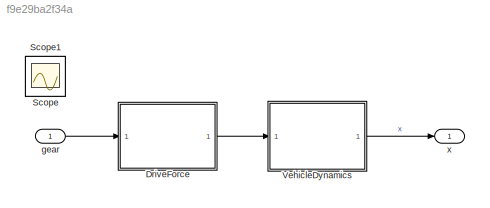
MODEL slx_f9e29ba2f34a
KIND model
CONFIG AbsTol = auto
CONFIG EnableMultiTasking = on
CONFIG FixedStep = auto
CONFIG MaxStep = auto
CONFIG MinStep = auto
CONFIG PreLoadFcn = load gear_data;\nFDR = 3.23;\nAvgEngTorque = 222;\nLoss = 0.8;\nr_tire = 1.030;\nm = 104.2;\nCd = 0.4;\nrho = 2.377e-3;\nh = 4.15;\nw = 5.71;
CONFIG RelTol = 1e-3
CONFIG SampleTimeConstraint = Unconstrained
CONFIG Solver = ode45
CONFIG SolverName = ode45
CONFIG StartTime = 0.0
CONFIG StopTime = 15
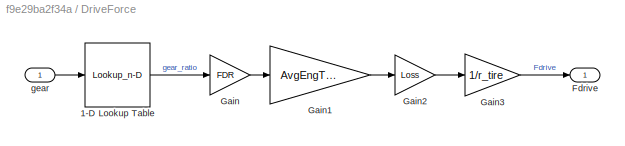
BLOCK [SubSystem] DriveForce
  Ports = [1, 1]
  RequestExecContextInheritance = off
BLOCK [Lookup_n-D] DriveForce/1-D Lookup Table
  BreakpointsForDimension1 = [1:5]
  ExtrapMethod = Clip
  InterpMethod = Flat
  NumberOfTableDimensions = 1
  Ports = [1, 1]
  RndMeth = Simplest
  Table = [4.21 2.49 1.66 1.24 1.00]
BLOCK [Outport] DriveForce/Fdrive
  IconDisplay = Port number
BLOCK [Gain] DriveForce/Gain
  Gain = FDR
  OutDataTypeStr = Inherit: Inherit via internal rule
  ParamDataTypeStr = Inherit: Inherit via internal rule
  SaturateOnIntegerOverflow = off
BLOCK [Gain] DriveForce/Gain1
  Gain = AvgEngTorque
  OutDataTypeStr = Inherit: Inherit via internal rule
  ParamDataTypeStr = Inherit: Inherit via internal rule
  SaturateOnIntegerOverflow = off
BLOCK [Gain] DriveForce/Gain2
  Gain = Loss
  OutDataTypeStr = Inherit: Inherit via internal rule
  ParamDataTypeStr = Inherit: Inherit via internal rule
  SaturateOnIntegerOverflow = off
BLOCK [Gain] DriveForce/Gain3
  Gain = 1/r_tire
  OutDataTypeStr = Inherit: Inherit via internal rule
  ParamDataTypeStr = Inherit: Inherit via internal rule
  SaturateOnIntegerOverflow = off
BLOCK [Inport] DriveForce/gear
  IconDisplay = Port number
BLOCK [Scope] Scope
  Floating = off
  IOType = viewer
  NumInputPorts = 1
  Ports = []
  ScopeSpecificationString = Simulink.scopes.TimeScopeBlockCfg('CurrentConfiguration', extmgr.ConfigurationSet(extmgr.Configuration('Core','General UI',true),extmgr.Configuration('Core','Source UI',true),extmgr.Configuration('Sources','WiredSimulink',true,'DataLoggingMaxPoints','7500','DataLoggingLimitDataPoints',true,'DataLoggingSaveFormat','Array','DataLoggingDecimation','1','DataLoggingDecimateData',true),extmgr.Configurat...<+1882ch>
BLOCK [Scope] Scope1
  Floating = off
  IOType = viewer
  NumInputPorts = 1
  Ports = []
  ScopeSpecificationString = Simulink.scopes.TimeScopeBlockCfg('CurrentConfiguration', extmgr.ConfigurationSet(extmgr.Configuration('Core','General UI',true),extmgr.Configuration('Core','Source UI',true),extmgr.Configuration('Sources','WiredSimulink',true,'DataLoggingVariableName','ScopeData1','DataLoggingMaxPoints','7500','DataLoggingLimitDataPoints',true,'DataLoggingSaveFormat','Array','DataLoggingDecimation','1','DataLoggi...<+2794ch>
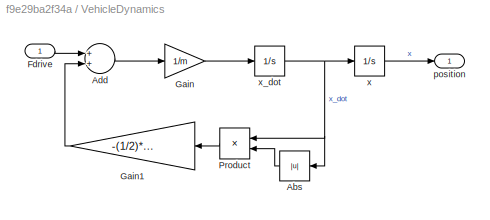
BLOCK [SubSystem] VehicleDynamics
  Ports = [1, 1]
  RequestExecContextInheritance = off
BLOCK [Abs] VehicleDynamics/Abs
  SaturateOnIntegerOverflow = off
BLOCK [Sum] VehicleDynamics/Add
  InputSameDT = off
  OutDataTypeStr = Inherit: Inherit via internal rule
  Ports = [2, 1]
  SaturateOnIntegerOverflow = off
BLOCK [Inport] VehicleDynamics/Fdrive
  IconDisplay = Port number
BLOCK [Gain] VehicleDynamics/Gain
  Gain = 1/m
  OutDataTypeStr = Inherit: Inherit via internal rule
  ParamDataTypeStr = Inherit: Inherit via internal rule
  SaturateOnIntegerOverflow = off
BLOCK [Gain] VehicleDynamics/Gain1
  Gain = -(1/2)*Cd*rho*h*w
  OutDataTypeStr = Inherit: Inherit via internal rule
  ParamDataTypeStr = Inherit: Inherit via internal rule
  SaturateOnIntegerOverflow = off
BLOCK [Product] VehicleDynamics/Product
  InputSameDT = off
  OutDataTypeStr = Inherit: Inherit via internal rule
  Ports = [2, 1]
  SaturateOnIntegerOverflow = off
BLOCK [Outport] VehicleDynamics/position
  IconDisplay = Port number
BLOCK [Integrator] VehicleDynamics/x
  Ports = [1, 1]
BLOCK [Integrator] VehicleDynamics/x_dot
  Ports = [1, 1]
BLOCK [Inport] gear
  IconDisplay = Port number
BLOCK [Outport] x
  IconDisplay = Port number
LINE DriveForce/1-D Lookup Table:1 -> DriveForce/Gain:1
LINE DriveForce/Gain1:1 -> DriveForce/Gain2:1
LINE DriveForce/Gain2:1 -> DriveForce/Gain3:1
LINE DriveForce/Gain3:1 -> DriveForce/Fdrive:1
LINE DriveForce/Gain:1 -> DriveForce/Gain1:1
LINE DriveForce/gear:1 -> DriveForce/1-D Lookup Table:1
LINE DriveForce:1 -> VehicleDynamics:1
LINE VehicleDynamics/Abs:1 -> VehicleDynamics/Product:2
LINE VehicleDynamics/Add:1 -> VehicleDynamics/Gain:1
LINE VehicleDynamics/Fdrive:1 -> VehicleDynamics/Add:1
LINE VehicleDynamics/Gain1:1 -> VehicleDynamics/Add:2
LINE VehicleDynamics/Gain:1 -> VehicleDynamics/x_dot:1
LINE VehicleDynamics/Product:1 -> VehicleDynamics/Gain1:1
LINE VehicleDynamics/x:1 -> VehicleDynamics/position:1
NET VehicleDynamics/x_dot:1 -> VehicleDynamics/Abs:1, VehicleDynamics/Product:1, VehicleDynamics/x:1
LINE VehicleDynamics:1 -> x:1
LINE gear:1 -> DriveForce:1
note: NET lines group one-source signal fan-out (src -> all destinations, sorted); 1:1 wires keep LINE
